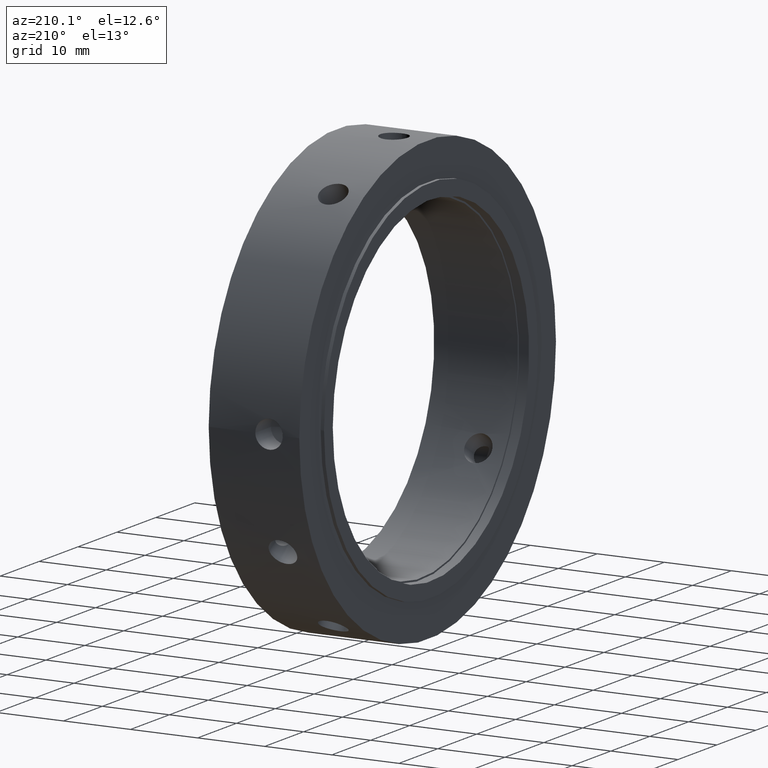
[diagram: clean part render]
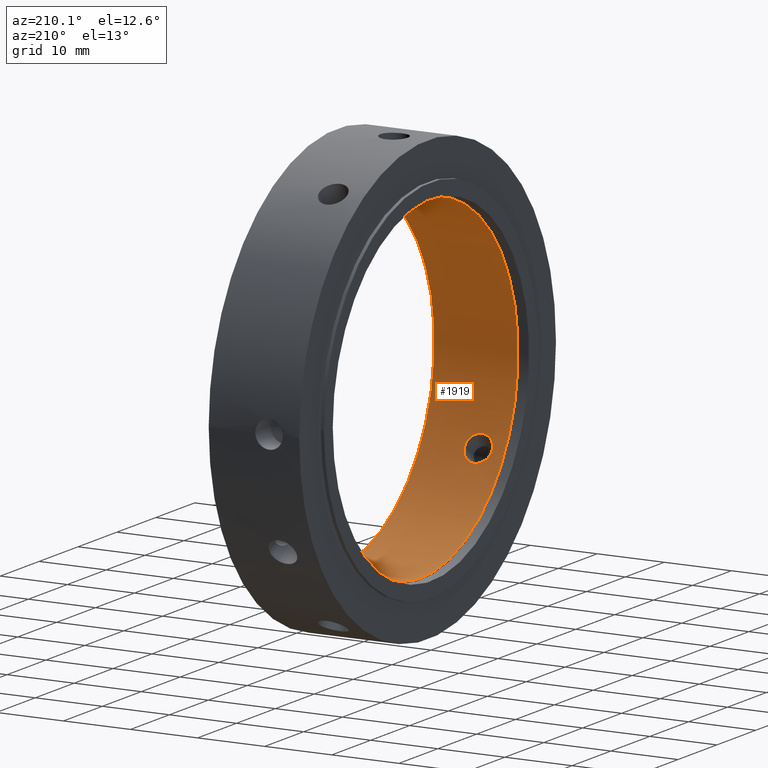
[diagram: same view with one face highlighted and labeled with its STEP entity id]
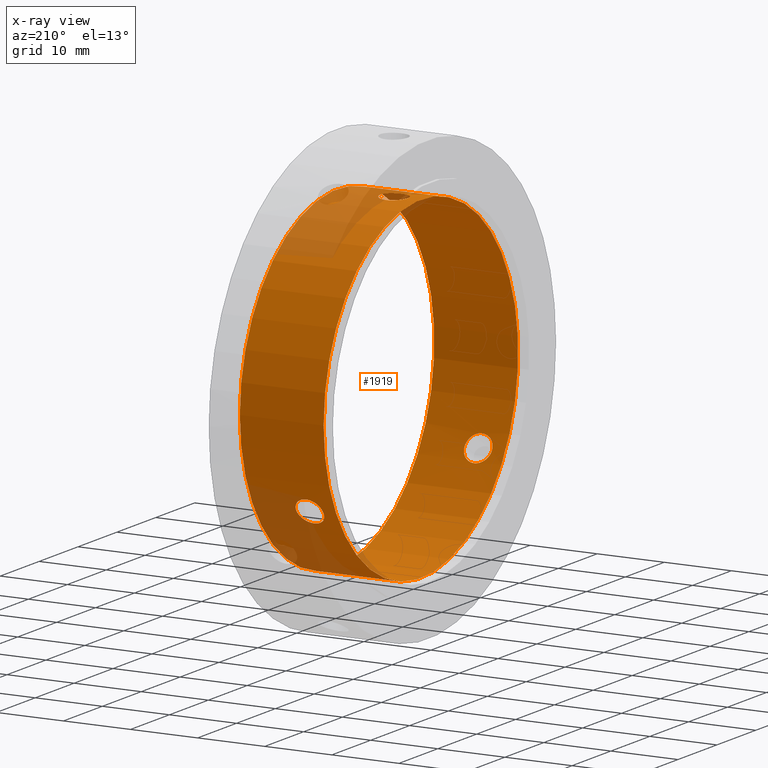
[diagram: x-ray of the same camera — body ghosted, the highlighted face saturated]
A machine part, auxiliary view. The second image highlights one B-rep face of the part: STEP entity #1919.
The next image is the same camera in x-ray: the body ghosted, the highlighted face saturated — about 13% of this face is hidden behind the body in this view.
In plain terms, the highlighted cylindrical surface (bore or boss wall) has radius 25 mm, axis along (1, 0, 0).
Its self-contained STEP definition (entity closure, byte-faithful):
#1299=CARTESIAN_POINT('',(5.499999999999994,22.602722887274265,-10.682552039708861));
#1300=VERTEX_POINT('',#1299);
#1301=CARTESIAN_POINT('',(5.499999999999994,22.602722887274265,-10.68255203970886));
#1302=CARTESIAN_POINT('',(5.757526857197906,22.602722887274265,-10.68255203970886));
#1303=CARTESIAN_POINT('',(6.032139883304705,22.580791463763813,-10.729346020576166));
#1304=CARTESIAN_POINT('',(6.537183172776456,22.489935888286038,-10.918506897373593));
#1305=CARTESIAN_POINT('',(6.767623290878284,22.420815279650981,-11.06075305179294));
#1306=CARTESIAN_POINT('',(7.131514232847717,22.257173218764574,-11.386459330492864));
#1307=CARTESIAN_POINT('',(7.289263536876078,22.151692705965935,-11.591649598950546));
#1308=CARTESIAN_POINT('',(7.498509615034216,21.912905454264838,-12.036959944934733));
#1309=CARTESIAN_POINT('',(7.549999999999994,21.779398325662566,-12.276975541671892));
#1310=CARTESIAN_POINT('',(7.549999999999994,21.521871863559351,-12.723024458328119));
#1311=CARTESIAN_POINT('',(7.498509615034217,21.38076582378163,-12.958652821652578));
#1312=CARTESIAN_POINT('',(7.289263536876081,21.114509377441827,-13.388103820717689));
#1313=CARTESIAN_POINT('',(7.131514232847716,20.989549648747463,-13.582047758634372));
#1314=CARTESIAN_POINT('',(6.767623290878282,20.789300767664436,-13.886619079839605));
#1315=CARTESIAN_POINT('',(6.537183172776459,20.700672288664151,-14.017602360052271));
#1316=CARTESIAN_POINT('',(6.032139883304705,20.582281951694327,-14.19086603489019));
#1317=CARTESIAN_POINT('',(5.757526857197906,20.552722887274264,-14.23325619522506));
#1318=CARTESIAN_POINT('',(5.242473142802082,20.552722887274264,-14.23325619522506));
#1319=CARTESIAN_POINT('',(4.967860116695285,20.582281951694327,-14.19086603489019));
#1320=CARTESIAN_POINT('',(4.462816827223532,20.700672288664151,-14.017602360052271));
#1321=CARTESIAN_POINT('',(4.232376709121706,20.789300767664436,-13.886619079839605));
#1322=CARTESIAN_POINT('',(3.868485767152272,20.989549648747463,-13.582047758634372));
#1323=CARTESIAN_POINT('',(3.710736463123907,21.114509377441827,-13.388103820717689));
#1324=CARTESIAN_POINT('',(3.50149038496577,21.38076582378163,-12.958652821652578));
#1325=CARTESIAN_POINT('',(3.449999999999994,21.521871863559351,-12.723024458328119));
#1326=CARTESIAN_POINT('',(3.449999999999994,21.779398325662566,-12.276975541671892));
#1327=CARTESIAN_POINT('',(3.501490384965774,21.912905454264845,-12.036959944934731));
#1328=CARTESIAN_POINT('',(3.710736463123908,22.151692705965935,-11.591649598950548));
#1329=CARTESIAN_POINT('',(3.868485767152271,22.257173218764574,-11.386459330492873));
#1330=CARTESIAN_POINT('',(4.232376709121704,22.420815279650981,-11.060753051792947));
#1331=CARTESIAN_POINT('',(4.462816827223529,22.489935888286041,-10.918506897373597));
#1332=CARTESIAN_POINT('',(4.967860116695283,22.580791463763816,-10.72934602057617));
#1333=CARTESIAN_POINT('',(5.242473142802082,22.602722887274265,-10.682552039708861));
#1334=CARTESIAN_POINT('',(5.499999999999994,22.602722887274265,-10.682552039708861));
#1335=B_SPLINE_CURVE_WITH_KNOTS('',3,(#1301,#1302,#1303,#1304,#1305,#1306,#1307,#1308,#1309,#1310,#1311,#1312,#1313,#1314,#1315,#1316,#1317,#1318,#1319,#1320,#1321,#1322,#1323,#1324,#1325,#1326,#1327,#1328,#1329,#1330,#1331,#1332,#1333,#1334),.UNSPECIFIED.,.T.,.U.,(4,2,2,2,2,2,2,2,2,2,2,2,2,2,2,2,4),(0.0,0.077258057159373,0.154516114318747,0.231774052949711,0.309031991580675,0.386289930211639,0.463547868842603,0.540805926001976,0.61806398316135,0.695322040320724,0.772580097480097,0.849838036111061,0.927095974742025,1.004353913372989,1.081611852003952,1.158869909163326,1.2361279663227),.UNSPECIFIED.);
#1336=EDGE_CURVE('',#1300,#1300,#1335,.T.);
#1456=CARTESIAN_POINT('',(5.499999999999994,-20.552722887274271,-14.233256195225044));
#1457=VERTEX_POINT('',#1456);
#1458=CARTESIAN_POINT('',(5.499999999999993,-20.552722887274271,-14.233256195225046));
#1459=CARTESIAN_POINT('',(5.757526857197904,-20.552722887274271,-14.233256195225046));
#1460=CARTESIAN_POINT('',(6.032139883304707,-20.582281951694338,-14.190866034890178));
#1461=CARTESIAN_POINT('',(6.53718317277646,-20.700672288664158,-14.017602360052257));
#1462=CARTESIAN_POINT('',(6.767623290878284,-20.789300767664443,-13.886619079839592));
#1463=CARTESIAN_POINT('',(7.131514232847717,-20.98954964874747,-13.582047758634362));
#1464=CARTESIAN_POINT('',(7.289263536876081,-21.114509377441845,-13.388103820717678));
#1465=CARTESIAN_POINT('',(7.498509615034217,-21.380765823781637,-12.958652821652571));
#1466=CARTESIAN_POINT('',(7.549999999999995,-21.521871863559362,-12.723024458328108));
#1467=CARTESIAN_POINT('',(7.549999999999992,-21.779398325662576,-12.276975541671881));
#1468=CARTESIAN_POINT('',(7.498509615034216,-21.912905454264845,-12.036959944934724));
#1469=CARTESIAN_POINT('',(7.289263536876078,-22.151692705965939,-11.591649598950537));
#1470=CARTESIAN_POINT('',(7.131514232847717,-22.257173218764585,-11.386459330492855));
#1471=CARTESIAN_POINT('',(6.767623290878284,-22.420815279650988,-11.060753051792931));
#1472=CARTESIAN_POINT('',(6.537183172776457,-22.489935888286038,-10.918506897373582));
#1473=CARTESIAN_POINT('',(6.032139883304706,-22.580791463763813,-10.729346020576155));
#1474=CARTESIAN_POINT('',(5.757526857197906,-22.602722887274268,-10.682552039708854));
#1475=CARTESIAN_POINT('',(5.242473142802083,-22.602722887274268,-10.682552039708854));
#1476=CARTESIAN_POINT('',(4.967860116695284,-22.580791463763816,-10.729346020576155));
#1477=CARTESIAN_POINT('',(4.462816827223532,-22.489935888286041,-10.918506897373581));
#1478=CARTESIAN_POINT('',(4.232376709121704,-22.420815279650988,-11.060753051792931));
#1479=CARTESIAN_POINT('',(3.868485767152269,-22.257173218764585,-11.386459330492855));
#1480=CARTESIAN_POINT('',(3.710736463123909,-22.151692705965939,-11.591649598950539));
#1481=CARTESIAN_POINT('',(3.501490384965772,-21.912905454264845,-12.036959944934726));
#1482=CARTESIAN_POINT('',(3.449999999999995,-21.779398325662576,-12.276975541671881));
#1483=CARTESIAN_POINT('',(3.449999999999994,-21.521871863559365,-12.723024458328107));
#1484=CARTESIAN_POINT('',(3.50149038496577,-21.380765823781637,-12.958652821652564));
#1485=CARTESIAN_POINT('',(3.710736463123904,-21.114509377441841,-13.388103820717671));
#1486=CARTESIAN_POINT('',(3.86848576715227,-20.98954964874747,-13.582047758634355));
#1487=CARTESIAN_POINT('',(4.232376709121702,-20.789300767664443,-13.886619079839587));
#1488=CARTESIAN_POINT('',(4.462816827223527,-20.700672288664165,-14.017602360052258));
#1489=CARTESIAN_POINT('',(4.967860116695278,-20.582281951694341,-14.190866034890179));
#1490=CARTESIAN_POINT('',(5.242473142802081,-20.552722887274271,-14.233256195225046));
#1491=CARTESIAN_POINT('',(5.499999999999994,-20.552722887274271,-14.233256195225046));
#1492=B_SPLINE_CURVE_WITH_KNOTS('',3,(#1458,#1459,#1460,#1461,#1462,#1463,#1464,#1465,#1466,#1467,#1468,#1469,#1470,#1471,#1472,#1473,#1474,#1475,#1476,#1477,#1478,#1479,#1480,#1481,#1482,#1483,#1484,#1485,#1486,#1487,#1488,#1489,#1490,#1491),.UNSPECIFIED.,.T.,.U.,(4,2,2,2,2,2,2,2,2,2,2,2,2,2,2,2,4),(0.0,0.077258057159373,0.154516114318747,0.231774052949711,0.309031991580675,0.386289930211639,0.463547868842603,0.540805926001976,0.618063983161349,0.695322040320723,0.772580097480096,0.84983803611106,0.927095974742024,1.004353913372987,1.081611852003951,1.158869909163324,1.236127966322698),.UNSPECIFIED.);
#1493=EDGE_CURVE('',#1457,#1457,#1492,.T.);
#1613=CARTESIAN_POINT('',(5.499999999999994,-2.05,24.915808234933898));
#1614=VERTEX_POINT('',#1613);
#1615=CARTESIAN_POINT('',(5.499999999999994,-2.05,24.915808234933902));
#1616=CARTESIAN_POINT('',(5.757526857197906,-2.05,24.915808234933902));
#1617=CARTESIAN_POINT('',(6.032139883304703,-1.998509512069478,24.920212055466344));
#1618=CARTESIAN_POINT('',(6.537183172776457,-1.789263599621882,24.936109257425851));
#1619=CARTESIAN_POINT('',(6.767623290878284,-1.631514511986556,24.94737213163253));
#1620=CARTESIAN_POINT('',(7.131514232847717,-1.267623570017121,24.968507089127225));
#1621=CARTESIAN_POINT('',(7.289263536876081,-1.037183328524095,24.979753419668231));
#1622=CARTESIAN_POINT('',(7.498509615034217,-0.532139630483206,24.995612766587307));
#1623=CARTESIAN_POINT('',(7.549999999999994,-0.257526462103213,25.0));
#1624=CARTESIAN_POINT('',(7.549999999999994,0.257526462103213,25.0));
#1625=CARTESIAN_POINT('',(7.498509615034217,0.532139630483206,24.995612766587307));
#1626=CARTESIAN_POINT('',(7.289263536876081,1.037183328524095,24.979753419668231));
#1627=CARTESIAN_POINT('',(7.131514232847717,1.267623570017121,24.968507089127225));
#1628=CARTESIAN_POINT('',(6.767623290878284,1.631514511986556,24.94737213163253));
#1629=CARTESIAN_POINT('',(6.537183172776457,1.789263599621882,24.936109257425851));
#1630=CARTESIAN_POINT('',(6.032139883304702,1.998509512069479,24.920212055466344));
#1631=CARTESIAN_POINT('',(5.757526857197906,2.05,24.915808234933902));
#1632=CARTESIAN_POINT('',(5.242473142802082,2.05,24.915808234933902));
#1633=CARTESIAN_POINT('',(4.967860116695284,1.998509512069478,24.920212055466344));
#1634=CARTESIAN_POINT('',(4.462816827223531,1.789263599621882,24.936109257425851));
#1635=CARTESIAN_POINT('',(4.232376709121705,1.631514511986556,24.94737213163253));
#1636=CARTESIAN_POINT('',(3.868485767152271,1.267623570017122,24.968507089127225));
#1637=CARTESIAN_POINT('',(3.710736463123907,1.037183328524096,24.979753419668231));
#1638=CARTESIAN_POINT('',(3.50149038496577,0.532139630483206,24.995612766587307));
#1639=CARTESIAN_POINT('',(3.449999999999994,0.257526462103214,25.0));
#1640=CARTESIAN_POINT('',(3.449999999999994,-0.257526462103213,25.0));
#1641=CARTESIAN_POINT('',(3.501490384965771,-0.532139630483205,24.995612766587307));
#1642=CARTESIAN_POINT('',(3.710736463123907,-1.037183328524095,24.979753419668231));
#1643=CARTESIAN_POINT('',(3.868485767152271,-1.267623570017121,24.968507089127225));
#1644=CARTESIAN_POINT('',(4.232376709121705,-1.631514511986556,24.94737213163253));
#1645=CARTESIAN_POINT('',(4.462816827223531,-1.789263599621882,24.936109257425851));
#1646=CARTESIAN_POINT('',(4.967860116695285,-1.998509512069479,24.920212055466344));
#1647=CARTESIAN_POINT('',(5.242473142802083,-2.05,24.915808234933902));
#1648=CARTESIAN_POINT('',(5.499999999999994,-2.05,24.915808234933902));
#1649=B_SPLINE_CURVE_WITH_KNOTS('',3,(#1615,#1616,#1617,#1618,#1619,#1620,#1621,#1622,#1623,#1624,#1625,#1626,#1627,#1628,#1629,#1630,#1631,#1632,#1633,#1634,#1635,#1636,#1637,#1638,#1639,#1640,#1641,#1642,#1643,#1644,#1645,#1646,#1647,#1648),.UNSPECIFIED.,.T.,.U.,(4,2,2,2,2,2,2,2,2,2,2,2,2,2,2,2,4),(0.0,0.077258057159374,0.154516114318747,0.231774052949711,0.309031991580675,0.386289930211639,0.463547868842603,0.540805926001976,0.61806398316135,0.695322040320723,0.772580097480097,0.849838036111061,0.927095974742025,1.004353913372989,1.081611852003953,1.158869909163326,1.236127966322699),.UNSPECIFIED.);
#1650=EDGE_CURVE('',#1614,#1614,#1649,.T.);
#1671=CARTESIAN_POINT('',(1.499999999999993,25.0,0.0));
#1672=VERTEX_POINT('',#1671);
#1673=CARTESIAN_POINT('',(1.499999999999993,0.0,0.0));
#1674=DIRECTION('',(1.0,0.0,0.0));
#1675=DIRECTION('',(0.0,1.0,0.0));
#1676=AXIS2_PLACEMENT_3D('',#1673,#1674,#1675);
#1677=CIRCLE('',#1676,25.0);
#1678=EDGE_CURVE('',#1672,#1672,#1677,.T.);
#1887=CARTESIAN_POINT('',(13.999999999999995,25.0,0.0));
#1888=VERTEX_POINT('',#1887);
#1889=CARTESIAN_POINT('',(13.999999999999995,0.0,0.0));
#1890=DIRECTION('',(1.0,0.0,0.0));
#1891=DIRECTION('',(0.0,1.0,0.0));
#1892=AXIS2_PLACEMENT_3D('',#1889,#1890,#1891);
#1893=CIRCLE('',#1892,25.0);
#1894=EDGE_CURVE('',#1888,#1888,#1893,.T.);
#1899=CARTESIAN_POINT('',(7.749999999999994,0.0,0.0));
#1900=DIRECTION('',(1.0,0.0,0.0));
#1901=DIRECTION('',(0.0,1.0,0.0));
#1902=AXIS2_PLACEMENT_3D('',#1899,#1900,#1901);
#1903=CYLINDRICAL_SURFACE('',#1902,25.0);
#1904=ORIENTED_EDGE('',*,*,#1678,.F.);
#1905=EDGE_LOOP('',(#1904));
#1906=FACE_OUTER_BOUND('',#1905,.T.);
#1907=ORIENTED_EDGE('',*,*,#1336,.T.);
#1908=EDGE_LOOP('',(#1907));
#1909=FACE_BOUND('',#1908,.T.);
#1910=ORIENTED_EDGE('',*,*,#1493,.T.);
#1911=EDGE_LOOP('',(#1910));
#1912=FACE_BOUND('',#1911,.T.);
#1913=ORIENTED_EDGE('',*,*,#1650,.T.);
#1914=EDGE_LOOP('',(#1913));
#1915=FACE_BOUND('',#1914,.T.);
#1916=ORIENTED_EDGE('',*,*,#1894,.T.);
#1917=EDGE_LOOP('',(#1916));
#1918=FACE_BOUND('',#1917,.T.);
#1919=ADVANCED_FACE('',(#1906,#1909,#1912,#1915,#1918),#1903,.F.);